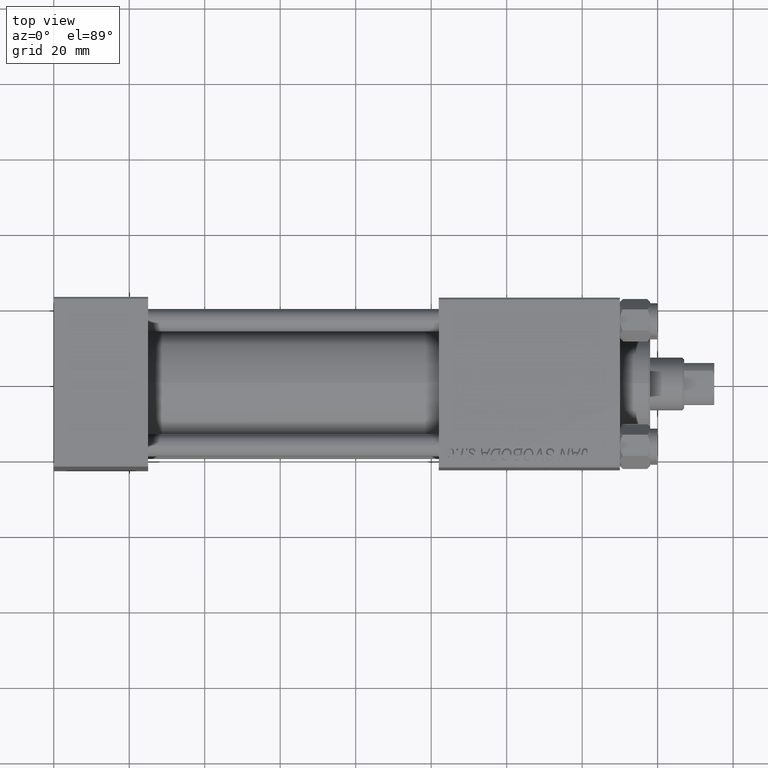
[diagram: clean part render]
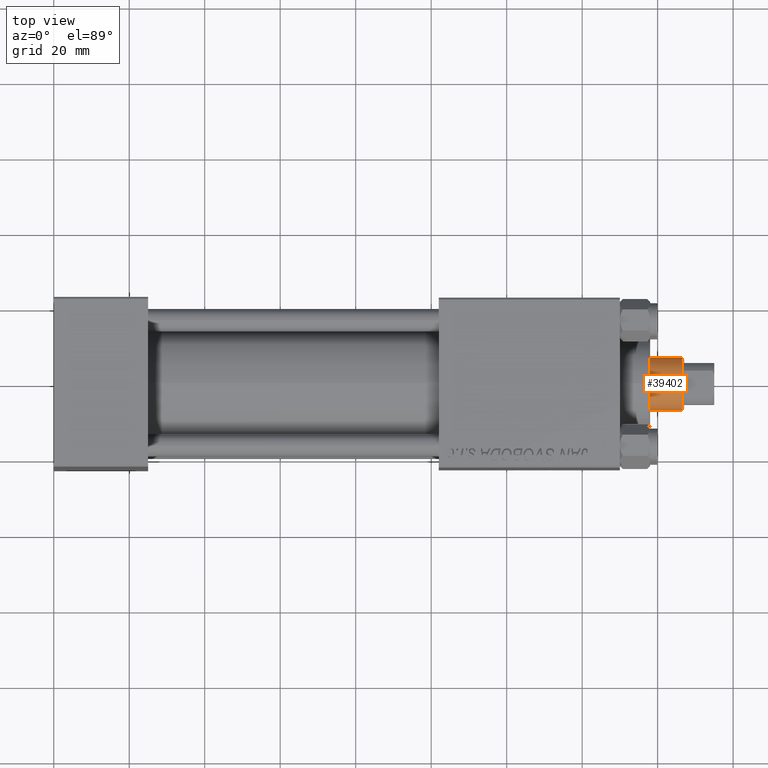
[diagram: same view with one face highlighted and labeled with its STEP entity id]
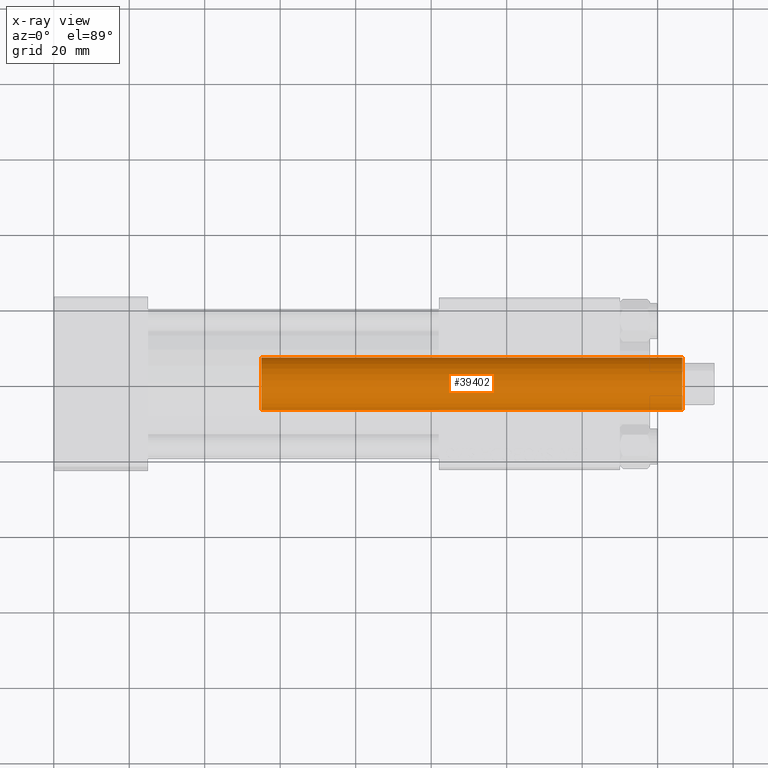
[diagram: x-ray of the same camera — body ghosted, the highlighted face saturated]
A machine part, top view. The second image highlights one B-rep face of the part: STEP entity #39402.
The next image is the same camera in x-ray: the body ghosted, the highlighted face saturated — about 1% of this face is hidden behind the body in this view.
In plain terms, the highlighted cylindrical surface (edge-blend (fillet) strip) has radius 7 mm, axis along (-1, 0, 0).
Its self-contained STEP definition (entity closure, byte-faithful):
#2723 = DIRECTION ( 'NONE',  ( 0.000000000000000000, 0.000000000000000000, 1.000000000000000000 ) ) ;
#2761 = DIRECTION ( 'NONE',  ( 0.000000000000000000, 0.000000000000000000, -1.000000000000000000 ) ) ;
#5568 = CIRCLE ( 'NONE', #43500, 7.000000000000000000 ) ;
#6130 = CYLINDRICAL_SURFACE ( 'NONE', #24810, 7.000000000000000000 ) ;
#8746 = VERTEX_POINT ( 'NONE', #49263 ) ;
#9458 = CARTESIAN_POINT ( 'NONE',  ( 7.000000000000000000, 8.572527594031473190E-16, 141.4999999999999716 ) ) ;
#12806 = VECTOR ( 'NONE', #48786, 1000.000000000000000 ) ;
#13490 = FACE_OUTER_BOUND ( 'NONE', #26513, .T. ) ;
#13731 = DIRECTION ( 'NONE',  ( -0.000000000000000000, -0.000000000000000000, -1.000000000000000000 ) ) ;
#17797 = EDGE_CURVE ( 'NONE', #32306, #19199, #18325, .T. ) ;
#18159 = DIRECTION ( 'NONE',  ( 1.000000000000000000, 0.000000000000000000, 0.000000000000000000 ) ) ;
#18325 = CIRCLE ( 'NONE', #40104, 7.000000000000000000 ) ;
#19199 = VERTEX_POINT ( 'NONE', #25667 ) ;
#21621 = CARTESIAN_POINT ( 'NONE',  ( -7.000000000000000000, 0.000000000000000000, 30.00000000000000000 ) ) ;
#24810 = AXIS2_PLACEMENT_3D ( 'NONE', #25105, #13731, #40501 ) ;
#25105 = CARTESIAN_POINT ( 'NONE',  ( 0.000000000000000000, 0.000000000000000000, 142.0000000000000284 ) ) ;
#25144 = DIRECTION ( 'NONE',  ( -0.000000000000000000, -0.000000000000000000, -1.000000000000000000 ) ) ;
#25573 = LINE ( 'NONE', #44521, #12806 ) ;
#25667 = CARTESIAN_POINT ( 'NONE',  ( -7.000000000000000000, 0.000000000000000000, 141.4999999999999716 ) ) ;
#25877 = CARTESIAN_POINT ( 'NONE',  ( 7.000000000000000000, 8.572527594031473190E-16, 142.0000000000000284 ) ) ;
#26513 = EDGE_LOOP ( 'NONE', ( #46945, #45870, #27995, #33989 ) ) ;
#27995 = ORIENTED_EDGE ( 'NONE', *, *, #37698, .T. ) ;
#32306 = VERTEX_POINT ( 'NONE', #9458 ) ;
#33989 = ORIENTED_EDGE ( 'NONE', *, *, #42192, .T. ) ;
#34353 = CARTESIAN_POINT ( 'NONE',  ( 0.000000000000000000, 0.000000000000000000, 141.4999999999999716 ) ) ;
#36769 = LINE ( 'NONE', #25877, #46699 ) ;
#37350 = CARTESIAN_POINT ( 'NONE',  ( 0.000000000000000000, 0.000000000000000000, 30.00000000000000000 ) ) ;
#37698 = EDGE_CURVE ( 'NONE', #19199, #40057, #25573, .T. ) ;
#38320 = EDGE_CURVE ( 'NONE', #32306, #8746, #36769, .T. ) ;
#39402 = ADVANCED_FACE ( 'NONE', ( #13490 ), #6130, .T. ) ;
#40057 = VERTEX_POINT ( 'NONE', #21621 ) ;
#40104 = AXIS2_PLACEMENT_3D ( 'NONE', #34353, #2761, #48752 ) ;
#40501 = DIRECTION ( 'NONE',  ( -1.000000000000000000, 0.000000000000000000, 0.000000000000000000 ) ) ;
#42192 = EDGE_CURVE ( 'NONE', #40057, #8746, #5568, .T. ) ;
#43500 = AXIS2_PLACEMENT_3D ( 'NONE', #37350, #2723, #18159 ) ;
#44521 = CARTESIAN_POINT ( 'NONE',  ( -7.000000000000000000, 0.000000000000000000, 142.0000000000000284 ) ) ;
#45870 = ORIENTED_EDGE ( 'NONE', *, *, #17797, .T. ) ;
#46699 = VECTOR ( 'NONE', #25144, 1000.000000000000000 ) ;
#46945 = ORIENTED_EDGE ( 'NONE', *, *, #38320, .F. ) ;
#48752 = DIRECTION ( 'NONE',  ( 1.000000000000000000, 0.000000000000000000, 0.000000000000000000 ) ) ;
#48786 = DIRECTION ( 'NONE',  ( -0.000000000000000000, -0.000000000000000000, -1.000000000000000000 ) ) ;
#49263 = CARTESIAN_POINT ( 'NONE',  ( 7.000000000000000000, 8.572527594031473190E-16, 30.00000000000000000 ) ) ;